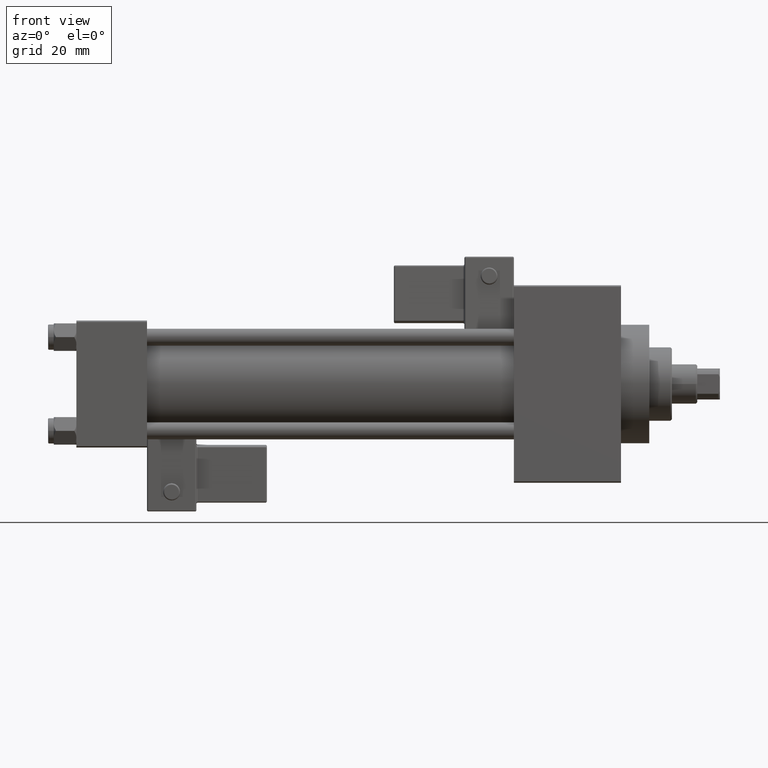
[diagram: clean part render]
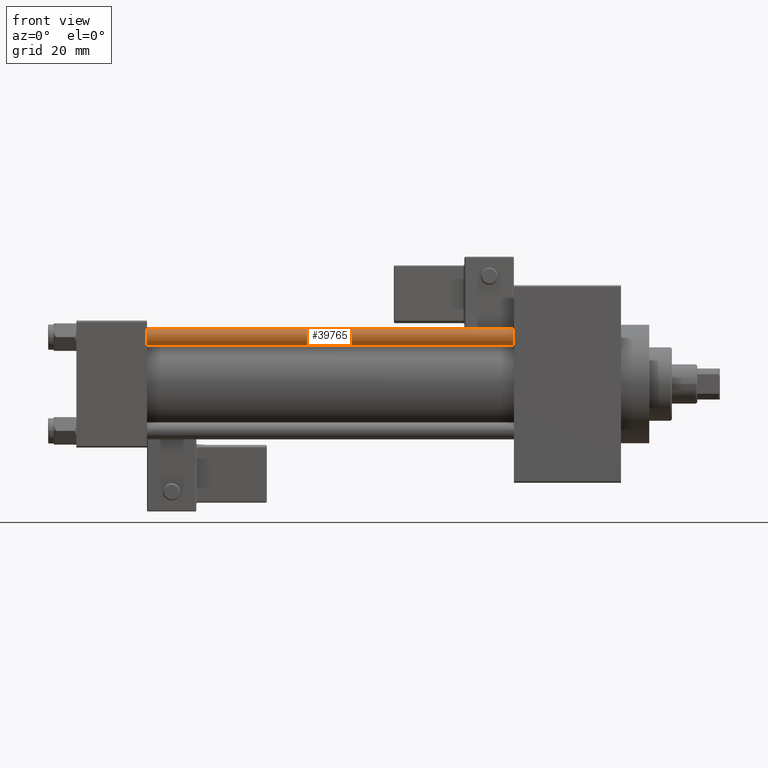
[diagram: same view with one face highlighted and labeled with its STEP entity id]
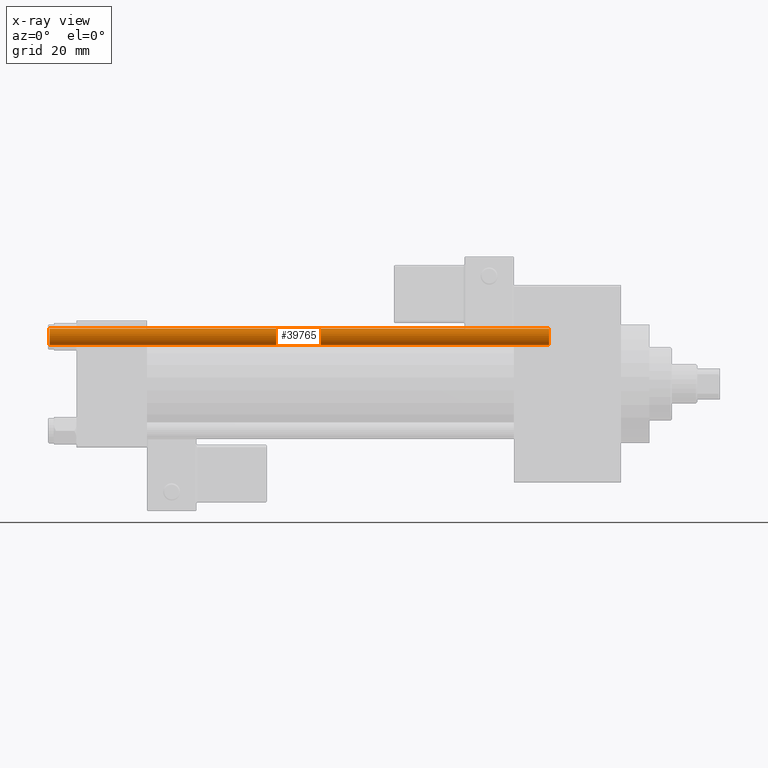
[diagram: x-ray of the same camera — body ghosted, the highlighted face saturated]
A machine part, front view. The second image highlights one B-rep face of the part: STEP entity #39765.
The next image is the same camera in x-ray: the body ghosted, the highlighted face saturated — about 0% of this face is hidden behind the body in this view.
In plain terms, the highlighted cylindrical surface (edge-blend (fillet) strip) has radius 3 mm, axis along (1, 0, 0).
Its self-contained STEP definition (entity closure, byte-faithful):
#145 = DIRECTION ( 'NONE',  ( -0.000000000000000000, -0.000000000000000000, 1.000000000000000000 ) ) ;
#394 = DIRECTION ( 'NONE',  ( 1.000000000000000000, 0.000000000000000000, 0.000000000000000000 ) ) ;
#1420 = CARTESIAN_POINT ( 'NONE',  ( 0.000000000000000000, 0.000000000000000000, 177.5000000000000000 ) ) ;
#1560 = ORIENTED_EDGE ( 'NONE', *, *, #25196, .T. ) ;
#1878 = VERTEX_POINT ( 'NONE', #2540 ) ;
#1973 = AXIS2_PLACEMENT_3D ( 'NONE', #37079, #2884, #36345 ) ;
#2148 = DIRECTION ( 'NONE',  ( 1.000000000000000000, 0.000000000000000000, 0.000000000000000000 ) ) ;
#2540 = CARTESIAN_POINT ( 'NONE',  ( 3.000000000000000444, 3.673940397442060361E-16, 177.5000000000000000 ) ) ;
#2884 = DIRECTION ( 'NONE',  ( -0.000000000000000000, -0.000000000000000000, -1.000000000000000000 ) ) ;
#4552 = VECTOR ( 'NONE', #20392, 1000.000000000000000 ) ;
#7893 = VERTEX_POINT ( 'NONE', #37099 ) ;
#11924 = CARTESIAN_POINT ( 'NONE',  ( 0.000000000000000000, 0.000000000000000000, 0.5000000000000281997 ) ) ;
#12557 = LINE ( 'NONE', #32901, #45981 ) ;
#16650 = CARTESIAN_POINT ( 'NONE',  ( 3.000000000000000444, 3.673940397442060361E-16, 178.0000000000000000 ) ) ;
#19086 = ORIENTED_EDGE ( 'NONE', *, *, #29301, .T. ) ;
#19857 = AXIS2_PLACEMENT_3D ( 'NONE', #11924, #145, #394 ) ;
#20392 = DIRECTION ( 'NONE',  ( -0.000000000000000000, -0.000000000000000000, -1.000000000000000000 ) ) ;
#21891 = CYLINDRICAL_SURFACE ( 'NONE', #1973, 3.000000000000000444 ) ;
#22533 = VERTEX_POINT ( 'NONE', #47597 ) ;
#25196 = EDGE_CURVE ( 'NONE', #1878, #48118, #47359, .T. ) ;
#27800 = ORIENTED_EDGE ( 'NONE', *, *, #42621, .T. ) ;
#29301 = EDGE_CURVE ( 'NONE', #48118, #22533, #42966, .T. ) ;
#32017 = ORIENTED_EDGE ( 'NONE', *, *, #47431, .F. ) ;
#32123 = EDGE_LOOP ( 'NONE', ( #27800, #1560, #19086, #32017 ) ) ;
#32901 = CARTESIAN_POINT ( 'NONE',  ( -3.000000000000000444, 0.000000000000000000, 178.0000000000000000 ) ) ;
#35562 = CARTESIAN_POINT ( 'NONE',  ( 3.000000000000000444, 3.673940397442060361E-16, 0.5000000000000281997 ) ) ;
#35631 = DIRECTION ( 'NONE',  ( 0.000000000000000000, 0.000000000000000000, -1.000000000000000000 ) ) ;
#36345 = DIRECTION ( 'NONE',  ( -1.000000000000000000, 0.000000000000000000, 0.000000000000000000 ) ) ;
#36410 = DIRECTION ( 'NONE',  ( -0.000000000000000000, -0.000000000000000000, -1.000000000000000000 ) ) ;
#37079 = CARTESIAN_POINT ( 'NONE',  ( 0.000000000000000000, 0.000000000000000000, 178.0000000000000000 ) ) ;
#37099 = CARTESIAN_POINT ( 'NONE',  ( -3.000000000000000444, 0.000000000000000000, 177.5000000000000000 ) ) ;
#38712 = CIRCLE ( 'NONE', #43542, 3.000000000000000444 ) ;
#39765 = ADVANCED_FACE ( 'NONE', ( #40819 ), #21891, .T. ) ;
#40819 = FACE_OUTER_BOUND ( 'NONE', #32123, .T. ) ;
#42621 = EDGE_CURVE ( 'NONE', #7893, #1878, #38712, .T. ) ;
#42966 = CIRCLE ( 'NONE', #19857, 3.000000000000000444 ) ;
#43542 = AXIS2_PLACEMENT_3D ( 'NONE', #1420, #35631, #2148 ) ;
#45981 = VECTOR ( 'NONE', #36410, 1000.000000000000000 ) ;
#47359 = LINE ( 'NONE', #16650, #4552 ) ;
#47431 = EDGE_CURVE ( 'NONE', #7893, #22533, #12557, .T. ) ;
#47597 = CARTESIAN_POINT ( 'NONE',  ( -3.000000000000000444, 0.000000000000000000, 0.5000000000000281997 ) ) ;
#48118 = VERTEX_POINT ( 'NONE', #35562 ) ;